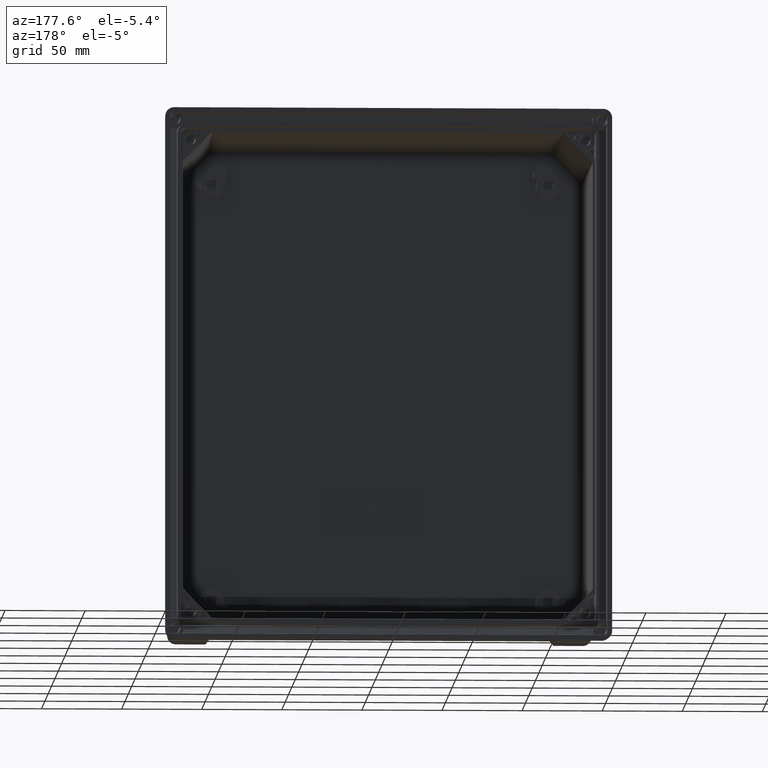
[diagram: clean part render]
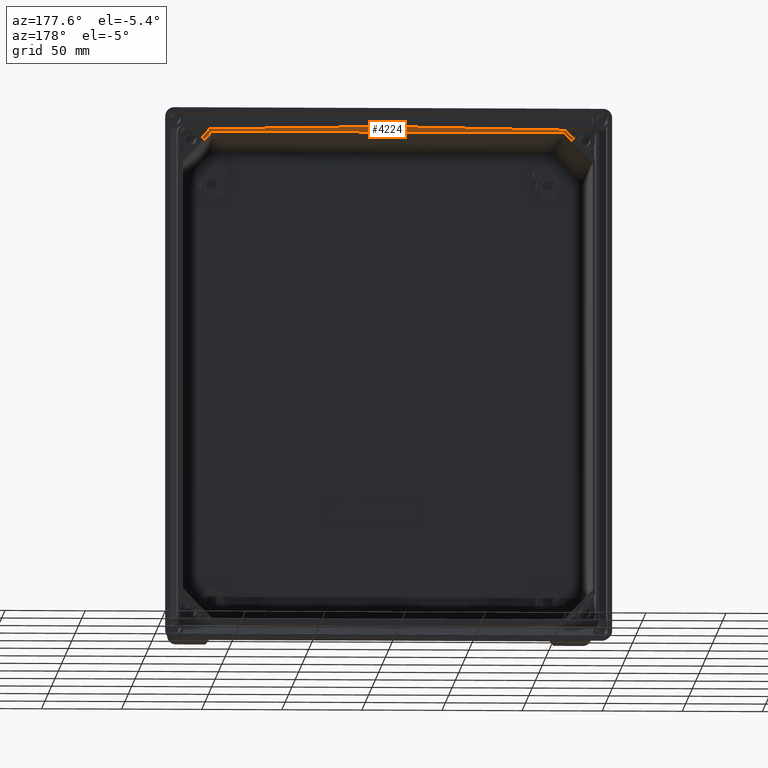
[diagram: same view with one face highlighted and labeled with its STEP entity id]
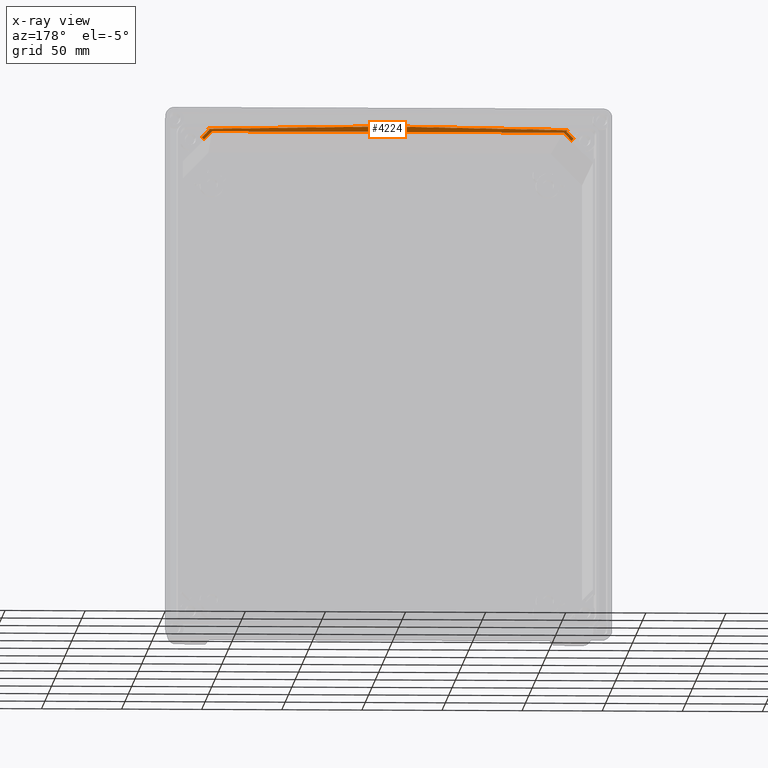
[diagram: x-ray of the same camera — body ghosted, the highlighted face saturated]
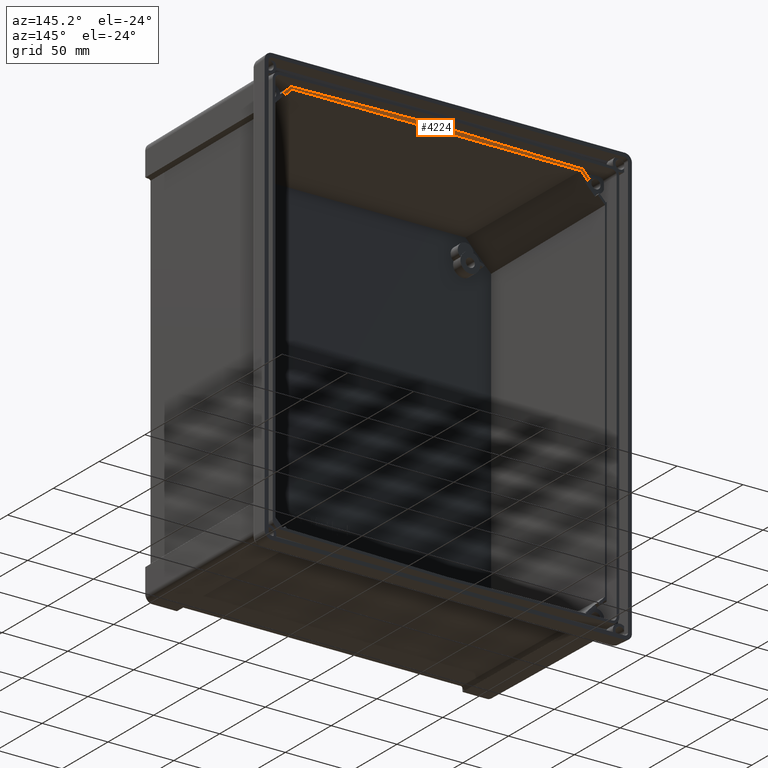
[diagram: same view with one face highlighted and labeled with its STEP entity id]
A machine part, auxiliary view. The second image highlights one B-rep face of the part: STEP entity #4224.
The next image is the same camera in x-ray: the body ghosted, the highlighted face saturated — about 0% of this face is hidden behind the body in this view.
A second angle (auxiliary view) of the same face is appended — the face is thin or edge-on in the first view.
In plain terms, the highlighted planar face has unit normal (0, 1, 0).
Its self-contained STEP definition (entity closure, byte-faithful):
#93 = EDGE_CURVE ( 'NONE', #4921, #2052, #12665, .T. ) ;
#210 = CARTESIAN_POINT ( 'NONE',  ( 111.4822948771374300, -12.84933532198744600, 153.3051645644112300 ) ) ;
#318 = LINE ( 'NONE', #3400, #1086 ) ;
#580 = VECTOR ( 'NONE', #4216, 999.9999999999998900 ) ;
#588 = EDGE_CURVE ( 'NONE', #4921, #2836, #5316, .T. ) ;
#1086 = VECTOR ( 'NONE', #10618, 1000.000000000000100 ) ;
#1087 = DIRECTION ( 'NONE',  ( 0.6990169098713001600, -0.0000000000000000000, -0.7151051389229269300 ) ) ;
#1120 = VECTOR ( 'NONE', #1087, 1000.000000000000000 ) ;
#1548 = LINE ( 'NONE', #2785, #6178 ) ;
#1894 = ORIENTED_EDGE ( 'NONE', *, *, #15126, .T. ) ;
#2009 = VECTOR ( 'NONE', #13660, 999.9999999999998900 ) ;
#2023 = AXIS2_PLACEMENT_3D ( 'NONE', #6634, #10273, #6836 ) ;
#2052 = VERTEX_POINT ( 'NONE', #3333 ) ;
#2351 = EDGE_CURVE ( 'NONE', #12634, #15263, #13410, .T. ) ;
#2785 = CARTESIAN_POINT ( 'NONE',  ( 129.6404621624618300, -12.84933532198744600, 153.6558065631298900 ) ) ;
#2836 = VERTEX_POINT ( 'NONE', #7531 ) ;
#2952 = VERTEX_POINT ( 'NONE', #9097 ) ;
#3303 = DIRECTION ( 'NONE',  ( 0.9998476951563911600, 0.0000000000000000000, 0.01745240643728359100 ) ) ;
#3333 = CARTESIAN_POINT ( 'NONE',  ( -111.4822948771374800, -12.84933532198744600, 153.3051645644112600 ) ) ;
#3379 = VERTEX_POINT ( 'NONE', #6125 ) ;
#3400 = CARTESIAN_POINT ( 'NONE',  ( 108.0390330992731300, -12.84933532198744600, 154.1385746211970800 ) ) ;
#3936 = LINE ( 'NONE', #6278, #580 ) ;
#4039 = LINE ( 'NONE', #6430, #2009 ) ;
#4216 = DIRECTION ( 'NONE',  ( -0.7071067811865439100, -0.0000000000000000000, 0.7071067811865512400 ) ) ;
#4224 = ADVANCED_FACE ( 'NONE', ( #7682 ), #13951, .T. ) ;
#4263 = CARTESIAN_POINT ( 'NONE',  ( 116.0106936616295700, -12.84933532198744600, 148.6725423829551600 ) ) ;
#4583 = CARTESIAN_POINT ( 'NONE',  ( -112.3885478794731800, -12.84933532198744600, 154.1360117035613400 ) ) ;
#4660 = LINE ( 'NONE', #7296, #14302 ) ;
#4783 = CARTESIAN_POINT ( 'NONE',  ( 130.1750712843064000, -12.84933532198744600, 134.1821644184420800 ) ) ;
#4921 = VERTEX_POINT ( 'NONE', #14187 ) ;
#5024 = ORIENTED_EDGE ( 'NONE', *, *, #11248, .F. ) ;
#5137 = VECTOR ( 'NONE', #14592, 1000.000000000000000 ) ;
#5199 = EDGE_CURVE ( 'NONE', #2836, #3379, #1548, .T. ) ;
#5203 = LINE ( 'NONE', #4783, #1120 ) ;
#5316 = LINE ( 'NONE', #8153, #13493 ) ;
#5711 = CARTESIAN_POINT ( 'NONE',  ( 114.6814403124859500, -12.84933532198744600, 147.3432890338115200 ) ) ;
#6125 = CARTESIAN_POINT ( 'NONE',  ( 112.1968731961302800, -12.84933532198745000, 153.9602855411183100 ) ) ;
#6178 = VECTOR ( 'NONE', #11096, 1000.000000000000200 ) ;
#6241 = CARTESIAN_POINT ( 'NONE',  ( -109.6795645159462500, -12.84933532198745000, 152.4602855411182500 ) ) ;
#6278 = CARTESIAN_POINT ( 'NONE',  ( -116.4211840401092000, -12.84933532198744600, 149.0830327614347900 ) ) ;
#6430 = CARTESIAN_POINT ( 'NONE',  ( 125.5010395654922200, -12.84933532198744600, 158.1628882868179200 ) ) ;
#6634 = CARTESIAN_POINT ( 'NONE',  ( 129.6467695800073700, -12.84933532198744600, 154.0171582723027700 ) ) ;
#6836 = DIRECTION ( 'NONE',  ( 0.0000000000000000000, -0.0000000000000000000, 1.000000000000000000 ) ) ;
#7285 = ORIENTED_EDGE ( 'NONE', *, *, #5199, .T. ) ;
#7296 = CARTESIAN_POINT ( 'NONE',  ( -130.1750712843066300, -12.84933532198744600, 134.1821644184418300 ) ) ;
#7497 = VERTEX_POINT ( 'NONE', #4263 ) ;
#7531 = CARTESIAN_POINT ( 'NONE',  ( -8.988810877508225900E-015, -12.84933532198744600, 155.9186892474997100 ) ) ;
#7586 = DIRECTION ( 'NONE',  ( -0.6990169098712986100, 0.0000000000000000000, -0.7151051389229283700 ) ) ;
#7682 = FACE_OUTER_BOUND ( 'NONE', #12844, .T. ) ;
#8120 = EDGE_CURVE ( 'NONE', #14344, #2952, #318, .T. ) ;
#8153 = CARTESIAN_POINT ( 'NONE',  ( 129.5740996884632600, -12.84933532198744600, 158.1804135705772000 ) ) ;
#8496 = VECTOR ( 'NONE', #14882, 1000.000000000000100 ) ;
#8593 = CARTESIAN_POINT ( 'NONE',  ( 255.9315720395415800, -12.84933532198745200, 152.4602855411182500 ) ) ;
#8615 = VECTOR ( 'NONE', #7586, 1000.000000000000000 ) ;
#8855 = ORIENTED_EDGE ( 'NONE', *, *, #588, .T. ) ;
#8958 = VERTEX_POINT ( 'NONE', #10039 ) ;
#9097 = CARTESIAN_POINT ( 'NONE',  ( 109.6795645159462300, -12.84933532198745000, 152.4602855411182500 ) ) ;
#9510 = ORIENTED_EDGE ( 'NONE', *, *, #2351, .T. ) ;
#9776 = LINE ( 'NONE', #13537, #8496 ) ;
#9857 = ORIENTED_EDGE ( 'NONE', *, *, #10674, .T. ) ;
#10039 = CARTESIAN_POINT ( 'NONE',  ( -116.0106936616296000, -12.84933532198744600, 148.6725423829551900 ) ) ;
#10190 = EDGE_CURVE ( 'NONE', #14344, #7497, #4039, .T. ) ;
#10273 = DIRECTION ( 'NONE',  ( 0.0000000000000000000, 1.000000000000000000, 0.0000000000000000000 ) ) ;
#10618 = DIRECTION ( 'NONE',  ( -0.6990169098713003800, -0.0000000000000000000, 0.7151051389229267100 ) ) ;
#10635 = DIRECTION ( 'NONE',  ( 0.7371074576121647800, 0.0000000000000000000, -0.6757755514462850900 ) ) ;
#10674 = EDGE_CURVE ( 'NONE', #2952, #12634, #15195, .T. ) ;
#10977 = DIRECTION ( 'NONE',  ( 0.6990169098712983900, -0.0000000000000000000, 0.7151051389229287100 ) ) ;
#11096 = DIRECTION ( 'NONE',  ( 0.9998476951563911600, 0.0000000000000000000, -0.01745240643728295000 ) ) ;
#11248 = EDGE_CURVE ( 'NONE', #11598, #3379, #9776, .T. ) ;
#11495 = ORIENTED_EDGE ( 'NONE', *, *, #10190, .F. ) ;
#11598 = VERTEX_POINT ( 'NONE', #210 ) ;
#12634 = VERTEX_POINT ( 'NONE', #6241 ) ;
#12657 = CARTESIAN_POINT ( 'NONE',  ( -114.6814403124859800, -12.84933532198745000, 147.3432890338115400 ) ) ;
#12665 = LINE ( 'NONE', #4583, #13792 ) ;
#12697 = ORIENTED_EDGE ( 'NONE', *, *, #93, .F. ) ;
#12844 = EDGE_LOOP ( 'NONE', ( #13248, #9857, #9510, #13409, #1894, #12697, #8855, #7285, #5024, #15412, #11495 ) ) ;
#13248 = ORIENTED_EDGE ( 'NONE', *, *, #8120, .T. ) ;
#13409 = ORIENTED_EDGE ( 'NONE', *, *, #14094, .T. ) ;
#13410 = LINE ( 'NONE', #14600, #8615 ) ;
#13493 = VECTOR ( 'NONE', #3303, 1000.000000000000200 ) ;
#13537 = CARTESIAN_POINT ( 'NONE',  ( 112.3808902434823400, -12.84933532198744600, 154.1289912303168700 ) ) ;
#13660 = DIRECTION ( 'NONE',  ( 0.7071067811865439100, 0.0000000000000000000, 0.7071067811865512400 ) ) ;
#13792 = VECTOR ( 'NONE', #10635, 1000.000000000000000 ) ;
#13951 = PLANE ( 'NONE',  #2023 ) ;
#14094 = EDGE_CURVE ( 'NONE', #15263, #8958, #3936, .T. ) ;
#14187 = CARTESIAN_POINT ( 'NONE',  ( -112.1968731961302600, -12.84933532198745000, 153.9602855411182500 ) ) ;
#14302 = VECTOR ( 'NONE', #10977, 1000.000000000000100 ) ;
#14344 = VERTEX_POINT ( 'NONE', #5711 ) ;
#14592 = DIRECTION ( 'NONE',  ( -1.000000000000000000, 7.884880659737484500E-018, 0.0000000000000000000 ) ) ;
#14600 = CARTESIAN_POINT ( 'NONE',  ( -129.4593396428767800, -12.84933532198744600, 132.2252688480139400 ) ) ;
#14882 = DIRECTION ( 'NONE',  ( 0.7371074576121642300, -0.0000000000000000000, 0.6757755514462856500 ) ) ;
#15126 = EDGE_CURVE ( 'NONE', #8958, #2052, #4660, .T. ) ;
#15195 = LINE ( 'NONE', #8593, #5137 ) ;
#15263 = VERTEX_POINT ( 'NONE', #12657 ) ;
#15330 = EDGE_CURVE ( 'NONE', #11598, #7497, #5203, .T. ) ;
#15412 = ORIENTED_EDGE ( 'NONE', *, *, #15330, .T. ) ;